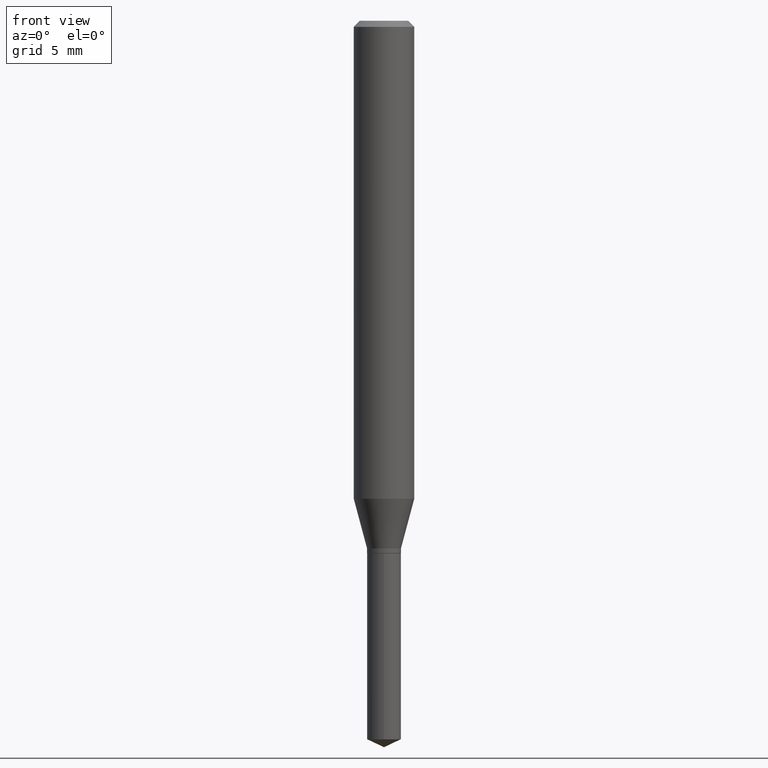
[diagram: clean part render]
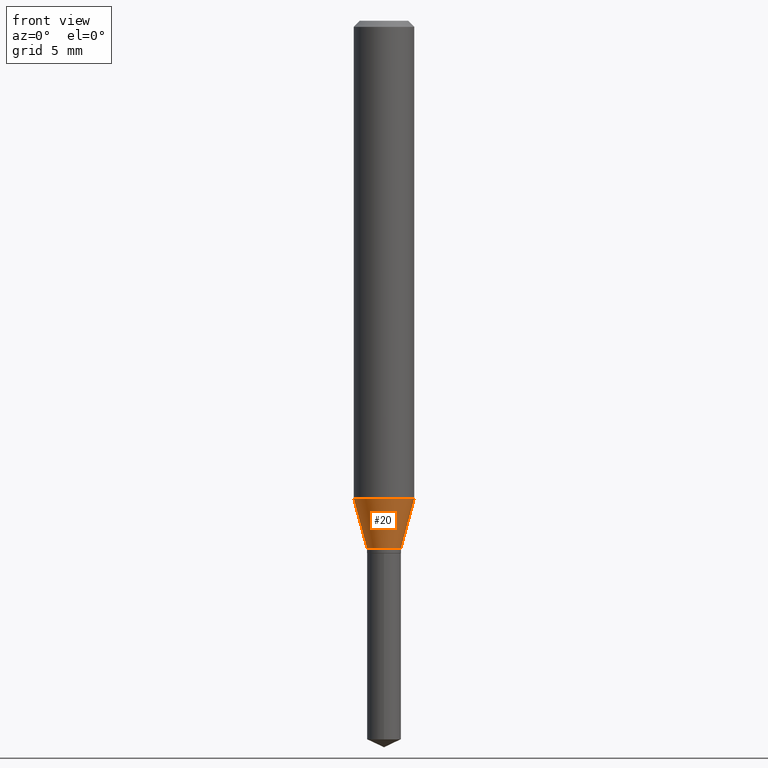
[diagram: same view with one face highlighted and labeled with its STEP entity id]
A machine part, front view. The second image highlights one B-rep face of the part: STEP entity #20.
In plain terms, the highlighted conical surface has half-angle 15 deg.
Its self-contained STEP definition (entity closure, byte-faithful):
#1 = CARTESIAN_POINT ( 'NONE',  ( 2.664338264338706582E-29, -3.803968918669607738E-15, -1.089500000000000135 ) ) ;
#3 = CARTESIAN_POINT ( 'NONE',  ( 2.664338264338706582E-29, -3.803968918669607738E-15, -1.089500000000000135 ) ) ;
#20 = ADVANCED_FACE ( 'NONE', ( #293 ), #295, .T. ) ;
#24 = ORIENTED_EDGE ( 'NONE', *, *, #190, .F. ) ;
#25 = DIRECTION ( 'NONE',  ( -2.445468806185136597E-29, 3.491481338843145583E-15, 1.000000000000000000 ) ) ;
#49 = CARTESIAN_POINT ( 'NONE',  ( -0.06250000000000012490, -3.001544100687909891E-15, -0.9868686027918559533 ) ) ;
#76 = LINE ( 'NONE', #222, #379 ) ;
#82 = VERTEX_POINT ( 'NONE', #262 ) ;
#87 = DIRECTION ( 'NONE',  ( 1.000000000000000000, -6.982962677686262766E-15, 0.000000000000000000 ) ) ;
#108 = VERTEX_POINT ( 'NONE', #49 ) ;
#128 = VECTOR ( 'NONE', #451, 39.37007874015747433 ) ;
#149 = EDGE_CURVE ( 'NONE', #350, #82, #268, .T. ) ;
#153 = DIRECTION ( 'NONE',  ( 1.000000000000000000, -6.982962677686262766E-15, 0.000000000000000000 ) ) ;
#165 = ORIENTED_EDGE ( 'NONE', *, *, #428, .T. ) ;
#184 = EDGE_LOOP ( 'NONE', ( #266, #261, #165, #24 ) ) ;
#188 = DIRECTION ( 'NONE',  ( 0.2588190451025213501, 1.565188264969621968E-15, 0.9659258262890682012 ) ) ;
#190 = EDGE_CURVE ( 'NONE', #108, #472, #260, .T. ) ;
#192 = AXIS2_PLACEMENT_3D ( 'NONE', #361, #25, #482 ) ;
#222 = CARTESIAN_POINT ( 'NONE',  ( 0.03500000000000000333, -4.048372612388626915E-15, -1.089500000000000135 ) ) ;
#241 = AXIS2_PLACEMENT_3D ( 'NONE', #3, #425, #87 ) ;
#249 = CARTESIAN_POINT ( 'NONE',  ( -0.03500000000000000333, -3.572736367847787487E-15, -1.089500000000000135 ) ) ;
#252 = CARTESIAN_POINT ( 'NONE',  ( 0.06250000000000012490, -3.882068477893365755E-15, -0.9868686027918559533 ) ) ;
#260 = CIRCLE ( 'NONE', #192, 0.06250000000000012490 ) ;
#261 = ORIENTED_EDGE ( 'NONE', *, *, #149, .T. ) ;
#262 = CARTESIAN_POINT ( 'NONE',  ( 0.03500000000000000333, -4.048372612388626915E-15, -1.089500000000000135 ) ) ;
#266 = ORIENTED_EDGE ( 'NONE', *, *, #354, .F. ) ;
#268 = CIRCLE ( 'NONE', #463, 0.03500000000000000333 ) ;
#293 = FACE_OUTER_BOUND ( 'NONE', #184, .T. ) ;
#295 = CONICAL_SURFACE ( 'NONE', #241, 0.03500000000000000333, 0.2617993877991500740 ) ;
#314 = LINE ( 'NONE', #470, #128 ) ;
#335 = DIRECTION ( 'NONE',  ( -2.445468806185136597E-29, 3.491481338843145583E-15, 1.000000000000000000 ) ) ;
#350 = VERTEX_POINT ( 'NONE', #249 ) ;
#354 = EDGE_CURVE ( 'NONE', #350, #108, #314, .T. ) ;
#361 = CARTESIAN_POINT ( 'NONE',  ( 2.413356383930993538E-29, -3.445633310537973691E-15, -0.9868686027918559533 ) ) ;
#379 = VECTOR ( 'NONE', #188, 39.37007874015747433 ) ;
#425 = DIRECTION ( 'NONE',  ( -2.445468806185136597E-29, 3.491481338843145583E-15, 1.000000000000000000 ) ) ;
#428 = EDGE_CURVE ( 'NONE', #82, #472, #76, .T. ) ;
#451 = DIRECTION ( 'NONE',  ( -0.2588190451025213501, 5.211531920934551042E-15, 0.9659258262890682012 ) ) ;
#463 = AXIS2_PLACEMENT_3D ( 'NONE', #1, #335, #153 ) ;
#470 = CARTESIAN_POINT ( 'NONE',  ( -0.03500000000000000333, -3.555278961153572452E-15, -1.089500000000000135 ) ) ;
#472 = VERTEX_POINT ( 'NONE', #252 ) ;
#482 = DIRECTION ( 'NONE',  ( 1.000000000000000000, -6.982962677686264344E-15, 0.000000000000000000 ) ) ;